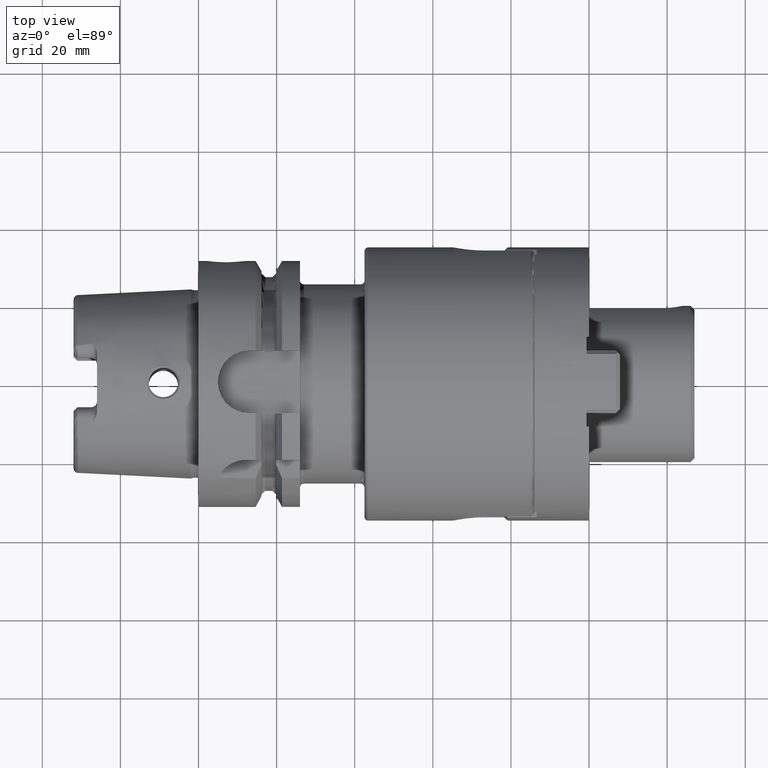
[diagram: clean part render]
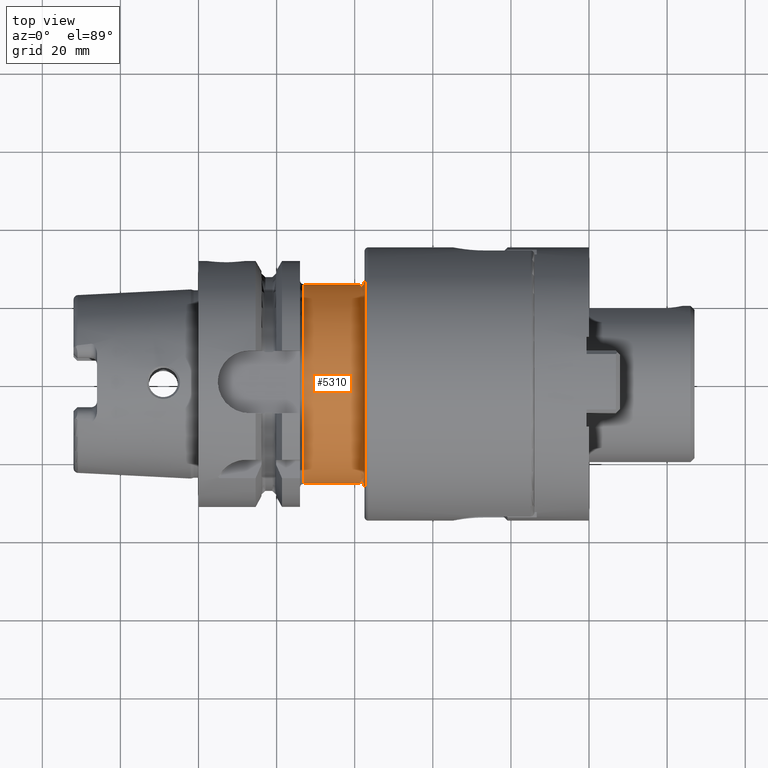
[diagram: same view with one face highlighted and labeled with its STEP entity id]
A machine part, top view. The second image highlights one B-rep face of the part: STEP entity #5310.
In plain terms, the highlighted cylindrical surface (partial cylindrical patch) has radius 25.5 mm, axis along (1, 0, 0).
Its self-contained STEP definition (entity closure, byte-faithful):
#1468=DIRECTION('',(1.E0,0.E0,4.830367427883E-14));
#1469=VECTOR('',#1468,1.45E1);
#1470=CARTESIAN_POINT('',(2.7E1,2.55E1,-1.837295939706E-13));
#1471=LINE('',#1470,#1469);
#1472=DIRECTION('',(1.E0,0.E0,-4.368663197563E-14));
#1473=VECTOR('',#1472,1.45E1);
#1474=CARTESIAN_POINT('',(2.7E1,-2.55E1,1.185760978782E-13));
#1475=LINE('',#1474,#1473);
#1506=CARTESIAN_POINT('',(4.15E1,0.E0,0.E0));
#1507=DIRECTION('',(-1.E0,0.E0,0.E0));
#1508=DIRECTION('',(0.E0,-1.E0,0.E0));
#1509=AXIS2_PLACEMENT_3D('',#1506,#1507,#1508);
#1511=CARTESIAN_POINT('',(2.7E1,0.E0,0.E0));
#1512=DIRECTION('',(-1.E0,0.E0,0.E0));
#1513=DIRECTION('',(0.E0,-1.E0,0.E0));
#1514=AXIS2_PLACEMENT_3D('',#1511,#1512,#1513);
#1516=CARTESIAN_POINT('',(2.7E1,0.E0,0.E0));
#1517=DIRECTION('',(-1.E0,0.E0,0.E0));
#1518=DIRECTION('',(0.E0,6.271723082483E-7,9.999999999998E-1));
#1519=AXIS2_PLACEMENT_3D('',#1516,#1517,#1518);
#3568=CARTESIAN_POINT('',(4.15E1,-2.55E1,0.E0));
#3569=CARTESIAN_POINT('',(4.15E1,2.55E1,0.E0));
#3570=VERTEX_POINT('',#3568);
#3571=VERTEX_POINT('',#3569);
#3584=CARTESIAN_POINT('',(2.7E1,2.744587685856E-5,2.549999999999E1));
#3586=VERTEX_POINT('',#3584);
#3600=CARTESIAN_POINT('',(2.7E1,-2.55E1,0.E0));
#3601=VERTEX_POINT('',#3600);
#3602=CARTESIAN_POINT('',(2.7E1,2.55E1,-1.837295939706E-13));
#3603=VERTEX_POINT('',#3602);
#5298=CARTESIAN_POINT('',(2.5175E1,0.E0,0.E0));
#5299=DIRECTION('',(1.E0,0.E0,0.E0));
#5300=DIRECTION('',(0.E0,-1.E0,0.E0));
#5301=AXIS2_PLACEMENT_3D('',#5298,#5299,#5300);
#5302=CYLINDRICAL_SURFACE('',#5301,2.55E1);
#5303=ORIENTED_EDGE('',*,*,#5290,.F.);
#5304=ORIENTED_EDGE('',*,*,#5248,.F.);
#5305=ORIENTED_EDGE('',*,*,#5233,.T.);
#5306=ORIENTED_EDGE('',*,*,#5215,.T.);
#5307=ORIENTED_EDGE('',*,*,#5245,.T.);
#5308=EDGE_LOOP('',(#5303,#5304,#5305,#5306,#5307));
#5309=FACE_OUTER_BOUND('',#5308,.F.);
#5310=ADVANCED_FACE('',(#5309),#5302,.T.);
#1510=CIRCLE('',#1509,2.55E1);
#1515=CIRCLE('',#1514,2.55E1);
#1520=CIRCLE('',#1519,2.55E1);
#5215=EDGE_CURVE('',#3586,#3603,#1520,.T.);
#5233=EDGE_CURVE('',#3601,#3586,#1515,.T.);
#5245=EDGE_CURVE('',#3603,#3571,#1471,.T.);
#5248=EDGE_CURVE('',#3601,#3570,#1475,.T.);
#5290=EDGE_CURVE('',#3570,#3571,#1510,.T.);